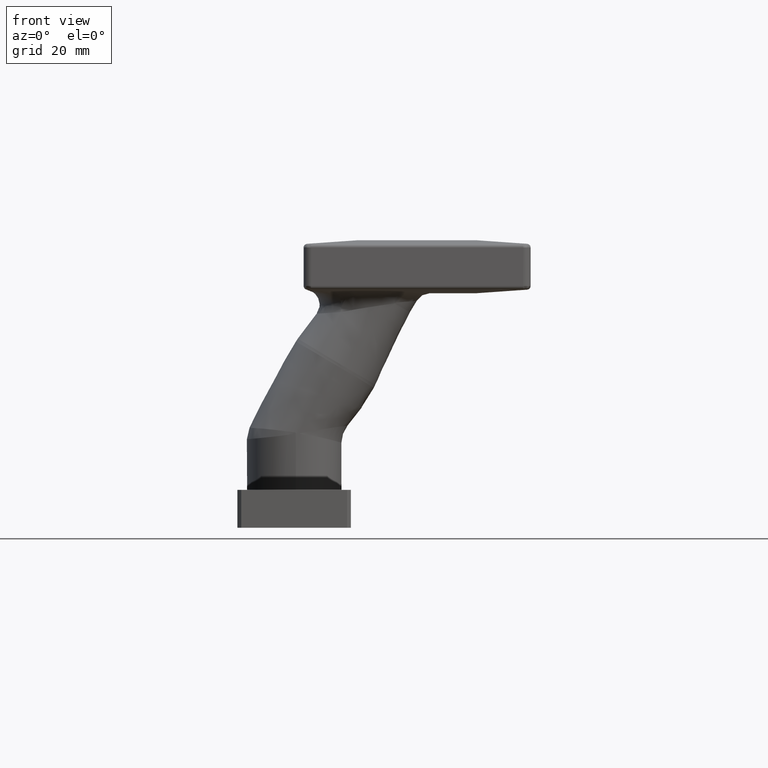
[diagram: clean part render]
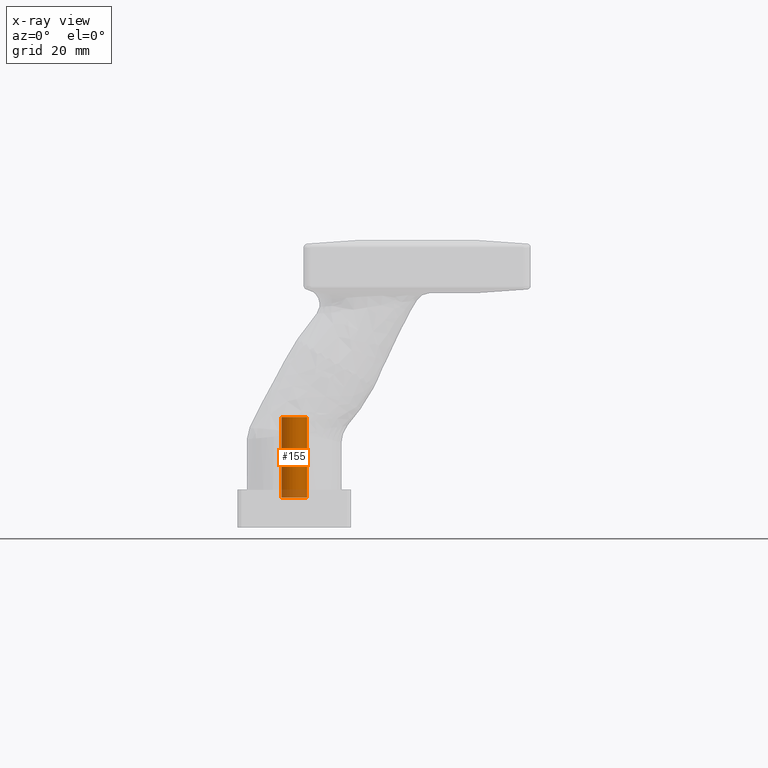
[diagram: x-ray — body ghosted, one internal face saturated and labeled with its STEP entity id]
A machine part, front view, then the same camera in x-ray: the body is ghosted and one INTERNAL B-rep face — a face not visible from any outside direction — is saturated and labeled: STEP entity #155.
In plain terms, the highlighted cylindrical surface (bore or boss wall) has radius 3.4 mm, axis along (-0, -0, -1).
Its self-contained STEP definition (entity closure, byte-faithful):
#155 = ADVANCED_FACE ( 'NONE', ( #1951, #6956 ), #13218, .F. ) ;
#157 = CIRCLE ( 'NONE', #10093, 3.399999999999987477 ) ;
#486 = CARTESIAN_POINT ( 'NONE',  ( 0.000000000000000000, 0.000000000000000000, 19.24999999999999289 ) ) ;
#621 = DIRECTION ( 'NONE',  ( -1.000000000000000000, 0.000000000000000000, 0.000000000000000000 ) ) ;
#669 = EDGE_LOOP ( 'NONE', ( #8473 ) ) ;
#1815 = DIRECTION ( 'NONE',  ( -1.000000000000000000, 0.000000000000000000, 0.000000000000000000 ) ) ;
#1951 = FACE_OUTER_BOUND ( 'NONE', #12595, .T. ) ;
#2235 = VERTEX_POINT ( 'NONE', #4645 ) ;
#2564 = AXIS2_PLACEMENT_3D ( 'NONE', #13339, #8100, #1815 ) ;
#2580 = VERTEX_POINT ( 'NONE', #5807 ) ;
#2695 = DIRECTION ( 'NONE',  ( -1.000000000000000000, 0.000000000000000000, 0.000000000000000000 ) ) ;
#3829 = DIRECTION ( 'NONE',  ( 0.000000000000000000, 0.000000000000000000, -1.000000000000000000 ) ) ;
#4645 = CARTESIAN_POINT ( 'NONE',  ( -3.399999999999987477, 0.000000000000000000, -2.000000000000015543 ) ) ;
#5807 = CARTESIAN_POINT ( 'NONE',  ( -3.399999999999985700, 0.000000000000000000, 19.24999999999999289 ) ) ;
#6840 = AXIS2_PLACEMENT_3D ( 'NONE', #486, #7009, #621 ) ;
#6956 = FACE_OUTER_BOUND ( 'NONE', #669, .T. ) ;
#7009 = DIRECTION ( 'NONE',  ( -0.000000000000000000, -0.000000000000000000, -1.000000000000000000 ) ) ;
#8100 = DIRECTION ( 'NONE',  ( -0.000000000000000000, -0.000000000000000000, -1.000000000000000000 ) ) ;
#8473 = ORIENTED_EDGE ( 'NONE', *, *, #8558, .F. ) ;
#8554 = ORIENTED_EDGE ( 'NONE', *, *, #8700, .T. ) ;
#8558 = EDGE_CURVE ( 'NONE', #2580, #2580, #11423, .T. ) ;
#8700 = EDGE_CURVE ( 'NONE', #2235, #2235, #157, .T. ) ;
#9144 = CARTESIAN_POINT ( 'NONE',  ( 0.000000000000000000, 0.000000000000000000, -2.000000000000015543 ) ) ;
#10093 = AXIS2_PLACEMENT_3D ( 'NONE', #9144, #3829, #2695 ) ;
#11423 = CIRCLE ( 'NONE', #6840, 3.399999999999985700 ) ;
#12595 = EDGE_LOOP ( 'NONE', ( #8554 ) ) ;
#13218 = CYLINDRICAL_SURFACE ( 'NONE', #2564, 3.399999999999987477 ) ;
#13339 = CARTESIAN_POINT ( 'NONE',  ( 0.000000000000000000, 0.000000000000000000, -3.000000000000000000 ) ) ;